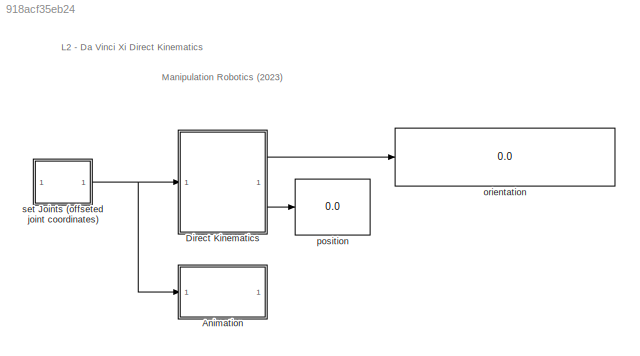
MODEL slx_918acf35eb24
KIND model
CONFIG AbsTol = auto
CONFIG EnableMultiTasking = on
CONFIG FixedStep = auto
CONFIG MaxStep = auto
CONFIG MinStep = auto
CONFIG RelTol = 1e-3
CONFIG SampleTimeConstraint = Unconstrained
CONFIG SolverName = VariableStepAuto
CONFIG StartTime = 0.0
CONFIG StopTime = inf
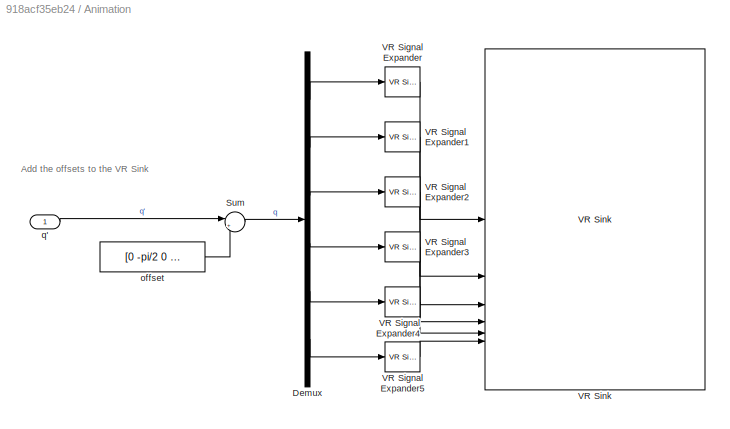
BLOCK [SubSystem] Animation
BLOCK [Demux] Animation/Demux
  Outputs = 6
BLOCK [Sum] Animation/Sum
  Inputs = |++
BLOCK [Reference] Animation/VR Signal Expander  REF=vrlib/VR Signal Expander
  SourceBlock = vrlib/VR Signal Expander
  SourceType = VR Signal Expander
BLOCK [Reference] Animation/VR Signal Expander1  REF=vrlib/VR Signal Expander
  SourceBlock = vrlib/VR Signal Expander
  SourceType = VR Signal Expander
BLOCK [Reference] Animation/VR Signal Expander2  REF=vrlib/VR Signal Expander
  SourceBlock = vrlib/VR Signal Expander
  SourceType = VR Signal Expander
BLOCK [Reference] Animation/VR Signal Expander3  REF=vrlib/VR Signal Expander
  SourceBlock = vrlib/VR Signal Expander
  SourceType = VR Signal Expander
BLOCK [Reference] Animation/VR Signal Expander4  REF=vrlib/VR Signal Expander
  SourceBlock = vrlib/VR Signal Expander
  SourceType = VR Signal Expander
BLOCK [Reference] Animation/VR Signal Expander5  REF=vrlib/VR Signal Expander
  SourceBlock = vrlib/VR Signal Expander
  SourceType = VR Signal Expander
BLOCK [Reference] Animation/VR Sink  REF=vrlib/VR Sink
  InstantiateOnLoad = on
  SourceBlock = vrlib/VR Sink
  SourceType = Virtual Reality Sink
BLOCK [Constant] Animation/offset
  Value = [0 -pi/2 0 pi/2 -pi/2 0]'
  VectorParams1D = off
BLOCK [Inport] Animation/q'
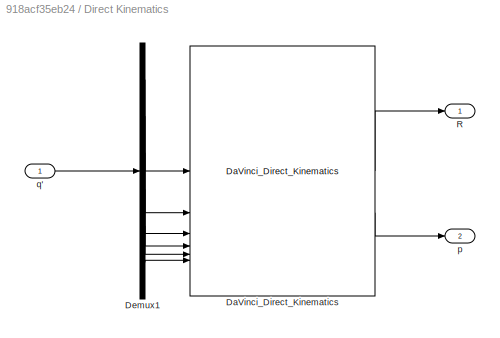
BLOCK [SubSystem] Direct Kinematics
BLOCK [Reference] Direct Kinematics/DaVinci_Direct_Kinematics  REF=DaVinci_Lib/DaVinci_Direct_Kinematics
  SourceBlock = DaVinci_Lib/DaVinci_Direct_Kinematics
  SourceType = SubSystem
BLOCK [Demux] Direct Kinematics/Demux1
  Outputs = 6
BLOCK [Outport] Direct Kinematics/R
BLOCK [Outport] Direct Kinematics/p
  Port = 2
BLOCK [Inport] Direct Kinematics/q'
BLOCK [Display] orientation
  Decimation = 1
BLOCK [Display] position
  Decimation = 1
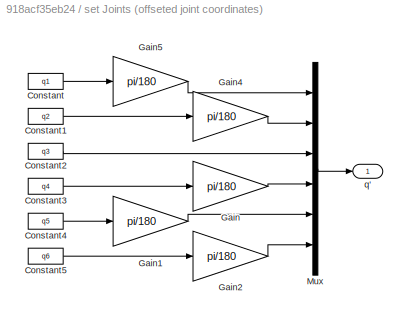
BLOCK [SubSystem] set Joints (offseted joint coordinates)
BLOCK [Constant] set Joints (offseted joint coordinates)/Constant
  Value = q1
BLOCK [Constant] set Joints (offseted joint coordinates)/Constant1
  Value = q2
BLOCK [Constant] set Joints (offseted joint coordinates)/Constant2
  Value = q3
BLOCK [Constant] set Joints (offseted joint coordinates)/Constant3
  Value = q4
BLOCK [Constant] set Joints (offseted joint coordinates)/Constant4
  Value = q5
BLOCK [Constant] set Joints (offseted joint coordinates)/Constant5
  Value = q6
BLOCK [Gain] set Joints (offseted joint coordinates)/Gain
  Gain = pi/180
BLOCK [Gain] set Joints (offseted joint coordinates)/Gain1
  Gain = pi/180
BLOCK [Gain] set Joints (offseted joint coordinates)/Gain2
  Gain = pi/180
BLOCK [Gain] set Joints (offseted joint coordinates)/Gain4
  Gain = pi/180
BLOCK [Gain] set Joints (offseted joint coordinates)/Gain5
  Gain = pi/180
BLOCK [Mux] set Joints (offseted joint coordinates)/Mux
  DisplayOption = bar
  Inputs = 6
BLOCK [Outport] set Joints (offseted joint coordinates)/q'
ANNOTATION (root): L2 - Da Vinci Xi Direct Kinematics
ANNOTATION (root): Manipulation Robotics (2023)
ANNOTATION Animation: Add the offsets to the VR Sink
LINE Animation/Demux:1 -> Animation/VR Signal Expander:1
LINE Animation/Demux:2 -> Animation/VR Signal Expander1:1
LINE Animation/Demux:3 -> Animation/VR Signal Expander2:1
LINE Animation/Demux:4 -> Animation/VR Signal Expander3:1
LINE Animation/Demux:5 -> Animation/VR Signal Expander4:1
LINE Animation/Demux:6 -> Animation/VR Signal Expander5:1
LINE Animation/Sum:1 -> Animation/Demux:1
LINE Animation/VR Signal Expander1:1 -> Animation/VR Sink:2
LINE Animation/VR Signal Expander2:1 -> Animation/VR Sink:3
LINE Animation/VR Signal Expander3:1 -> Animation/VR Sink:4
LINE Animation/VR Signal Expander4:1 -> Animation/VR Sink:5
LINE Animation/VR Signal Expander5:1 -> Animation/VR Sink:6
LINE Animation/VR Signal Expander:1 -> Animation/VR Sink:1
LINE Animation/offset:1 -> Animation/Sum:2
LINE Animation/q':1 -> Animation/Sum:1
LINE Direct Kinematics/DaVinci_Direct_Kinematics:1 -> Direct Kinematics/R:1
LINE Direct Kinematics/DaVinci_Direct_Kinematics:2 -> Direct Kinematics/p:1
LINE Direct Kinematics/Demux1:1 -> Direct Kinematics/DaVinci_Direct_Kinematics:1
LINE Direct Kinematics/Demux1:2 -> Direct Kinematics/DaVinci_Direct_Kinematics:2
LINE Direct Kinematics/Demux1:3 -> Direct Kinematics/DaVinci_Direct_Kinematics:3
LINE Direct Kinematics/Demux1:4 -> Direct Kinematics/DaVinci_Direct_Kinematics:4
LINE Direct Kinematics/Demux1:5 -> Direct Kinematics/DaVinci_Direct_Kinematics:5
LINE Direct Kinematics/Demux1:6 -> Direct Kinematics/DaVinci_Direct_Kinematics:6
LINE Direct Kinematics/q':1 -> Direct Kinematics/Demux1:1
LINE Direct Kinematics:1 -> orientation:1
LINE Direct Kinematics:2 -> position:1
LINE set Joints (offseted joint coordinates)/Constant1:1 -> set Joints (offseted joint coordinates)/Gain4:1
LINE set Joints (offseted joint coordinates)/Constant2:1 -> set Joints (offseted joint coordinates)/Mux:3
LINE set Joints (offseted joint coordinates)/Constant3:1 -> set Joints (offseted joint coordinates)/Gain:1
LINE set Joints (offseted joint coordinates)/Constant4:1 -> set Joints (offseted joint coordinates)/Gain1:1
LINE set Joints (offseted joint coordinates)/Constant5:1 -> set Joints (offseted joint coordinates)/Gain2:1
LINE set Joints (offseted joint coordinates)/Constant:1 -> set Joints (offseted joint coordinates)/Gain5:1
LINE set Joints (offseted joint coordinates)/Gain1:1 -> set Joints (offseted joint coordinates)/Mux:5
LINE set Joints (offseted joint coordinates)/Gain2:1 -> set Joints (offseted joint coordinates)/Mux:6
LINE set Joints (offseted joint coordinates)/Gain4:1 -> set Joints (offseted joint coordinates)/Mux:2
LINE set Joints (offseted joint coordinates)/Gain5:1 -> set Joints (offseted joint coordinates)/Mux:1
LINE set Joints (offseted joint coordinates)/Gain:1 -> set Joints (offseted joint coordinates)/Mux:4
LINE set Joints (offseted joint coordinates)/Mux:1 -> set Joints (offseted joint coordinates)/q':1
NET set Joints (offseted joint coordinates):1 -> Animation:1, Direct Kinematics:1
note: NET lines group one-source signal fan-out (src -> all destinations, sorted); 1:1 wires keep LINE
